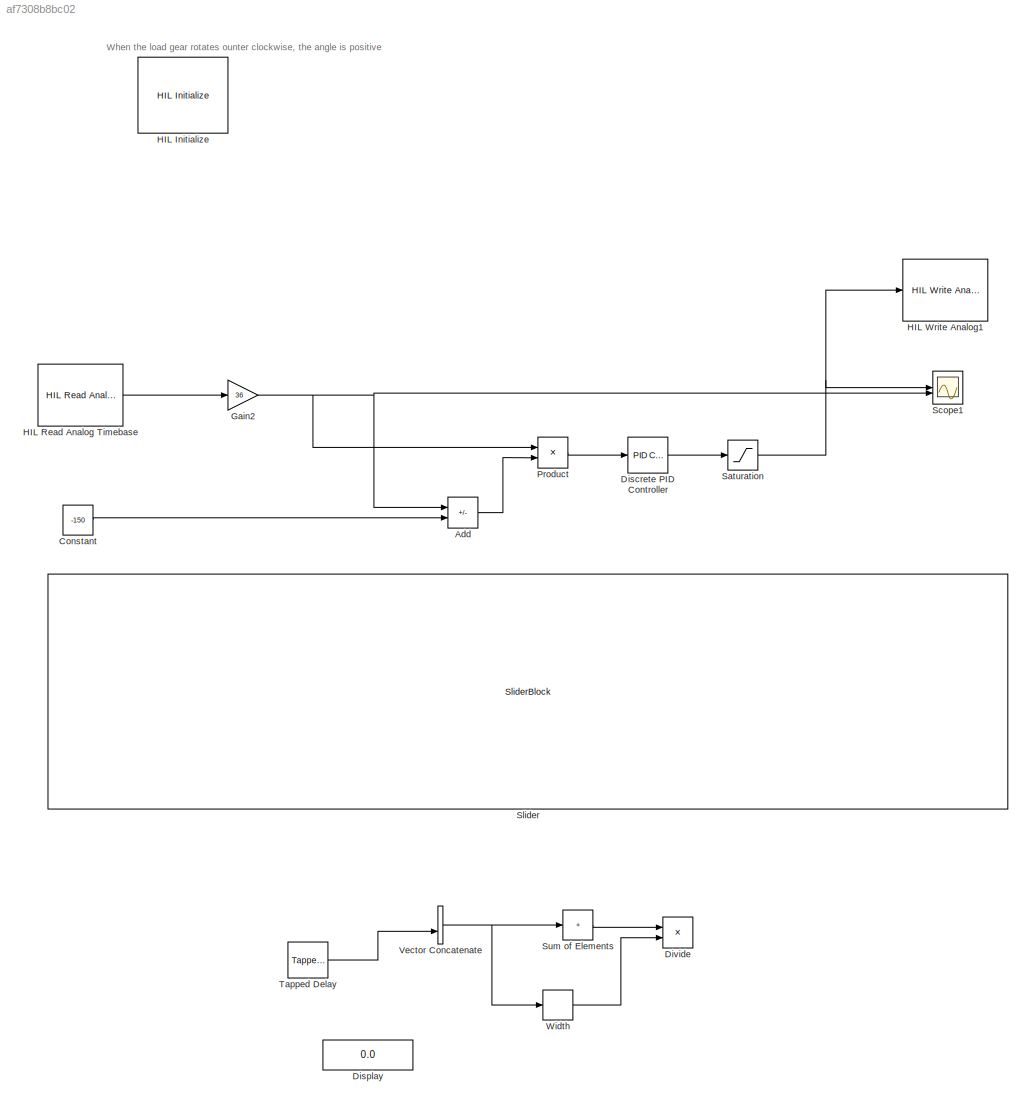
MODEL slx_af7308b8bc02
KIND model
CONFIG AbsTol = auto
CONFIG EnableMultiTasking = on
CONFIG FixedStep = 0.01
CONFIG MaxStep = auto
CONFIG MinStep = auto
CONFIG RelTol = 1e-3
CONFIG SampleTimeConstraint = Unconstrained
CONFIG SolverName = FixedStepAuto
CONFIG StartTime = 0.0
CONFIG StopTime = 20
BLOCK [Sum] Add
  IconShape = rectangular
  Inputs = -+
BLOCK [Constant] Constant
  Value = -150
BLOCK [Reference] Discrete PID Controller  REF=slpidlib/PID Controller
  LibrarySourceBlock = simulink/Discrete/Discrete PID Controller
  SourceBlock = slpidlib/PID Controller
  SourceType = PID 1dof
BLOCK [Display] Display
  Decimation = 1
BLOCK [Product] Divide
  Inputs = */
BLOCK [Gain] Gain2
  Gain = 36
BLOCK [Reference] HIL Initialize  REF=quarc_library/Data Acquisition/Generic/Configuration/HIL Initialize
  AttributesFormatString = %<object_name> (%<board_type>-%<board_number>)
  SourceBlock = quarc_library/Data Acquisition/Generic/Configuration/HIL Initialize
  SourceProductName = QUARC Targets
  SourceType = HIL Initialize
  UserDataPersistent = on
BLOCK [Reference] HIL Read Analog Timebase  REF=quarc_library/Data Acquisition/Generic/Timebases/HIL Read Analog
Timebase
  AttributesFormatString = (%<object_name>)
  SourceBlock = quarc_library/Data Acquisition/Generic/Timebases/HIL Read Analog\nTimebase
  SourceProductName = QUARC Targets
  SourceType = HIL Read Analog Timebase
  UserDataPersistent = on
BLOCK [Reference] HIL Write Analog1  REF=quarc_library/Data Acquisition/Generic/Immediate I//O/HIL Write Analog
  AttributesFormatString = (%<object_name>)
  SourceBlock = quarc_library/Data Acquisition/Generic/Immediate I//O/HIL Write Analog
  SourceProductName = QUARC Targets
  SourceType = HIL Write Analog
  UserDataPersistent = on
BLOCK [Product] Product
BLOCK [Saturate] Saturation
  LowerLimit = -9
  UpperLimit = 9
BLOCK [Scope] Scope1
  Floating = off
  NumInputPorts = 2
  ScopeSpecificationString = Simulink.scopes.TimeScopeBlockCfg('CurrentConfiguration', extmgr.ConfigurationSet(extmgr.Configuration('Core','General UI',true),extmgr.Configuration('Core','Source UI',true),extmgr.Configuration('Sources','WiredSimulink',true,'DataLoggingVariableName','ScopeData1'),extmgr.Configuration('Visuals','Time Domain',true,'SerializedDisplays',{struct('MinYLimReal','-15.38086','MaxYLimReal','138.42773','Y...<+1483ch>
BLOCK [SliderBlock] Slider
  ScaleMax = 170
  ScaleMin = -170
BLOCK [Sum] Sum of Elements
  IconShape = rectangular
  Inputs = +
BLOCK [Reference] Tapped Delay  REF=simulink/Discrete/Tapped Delay
  SourceBlock = simulink/Discrete/Tapped Delay
  SourceType = Tapped Delay Line
BLOCK [Concatenate] Vector Concatenate
BLOCK [Width] Width
ANNOTATION (root): When the load gear rotates ounter clockwise, the angle is positive
LINE Add:1 -> Product:2
LINE Constant:1 -> Add:2
LINE Discrete PID Controller:1 -> Saturation:1
NET Gain2:1 -> Add:1, Product:1, Scope1:2
LINE HIL Read Analog Timebase:1 -> Gain2:1
LINE Product:1 -> Discrete PID Controller:1
NET Saturation:1 -> HIL Write Analog1:1, Scope1:1
LINE Sum of Elements:1 -> Divide:1
LINE Tapped Delay:1 -> Vector Concatenate:2
NET Vector Concatenate:1 -> Sum of Elements:1, Width:1
LINE Width:1 -> Divide:2
note: NET lines group one-source signal fan-out (src -> all destinations, sorted); 1:1 wires keep LINE
